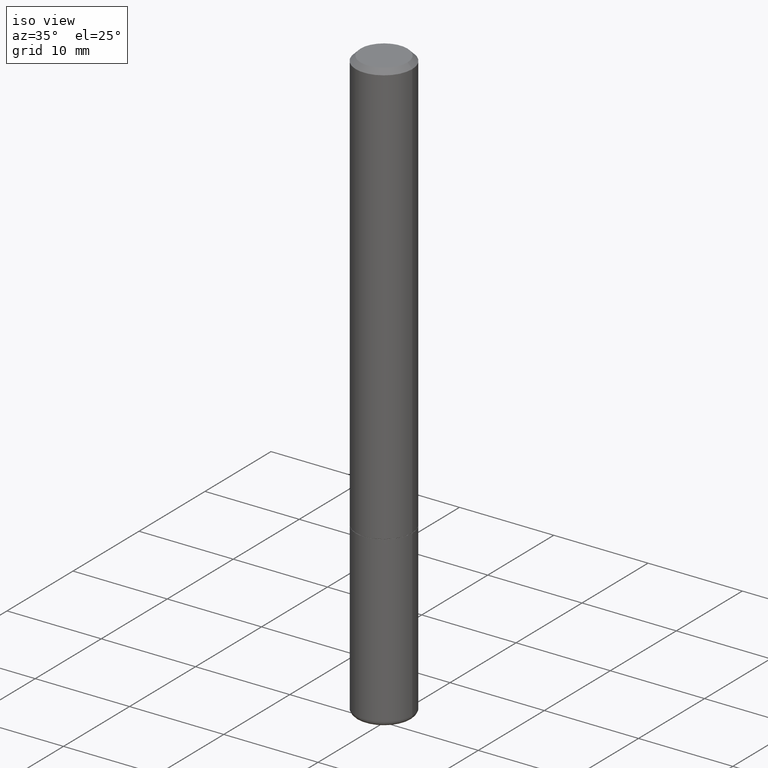
[diagram: clean part render]
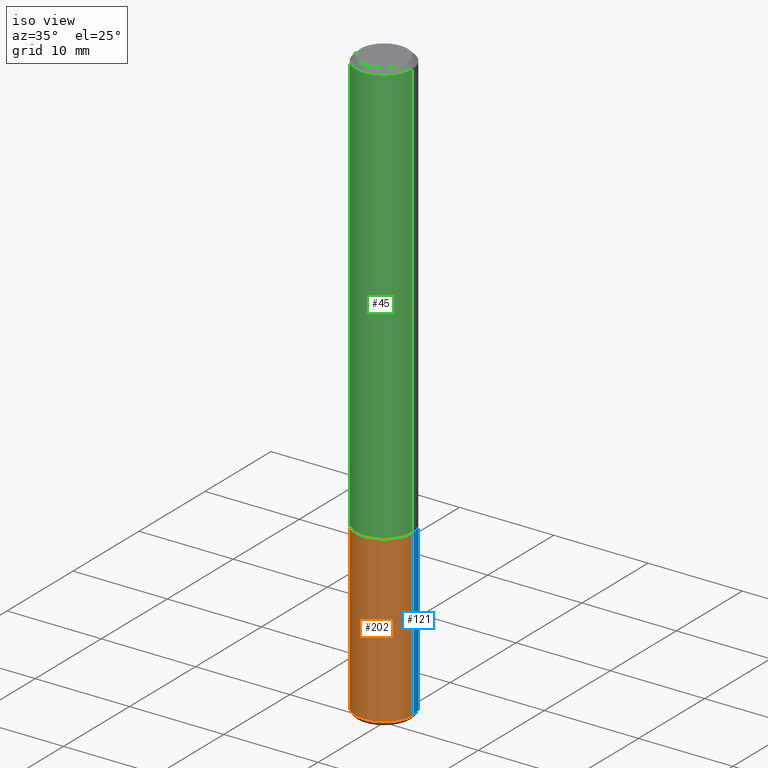
[diagram: same view with three faces highlighted in distinct colors, each labeled with its STEP entity id]
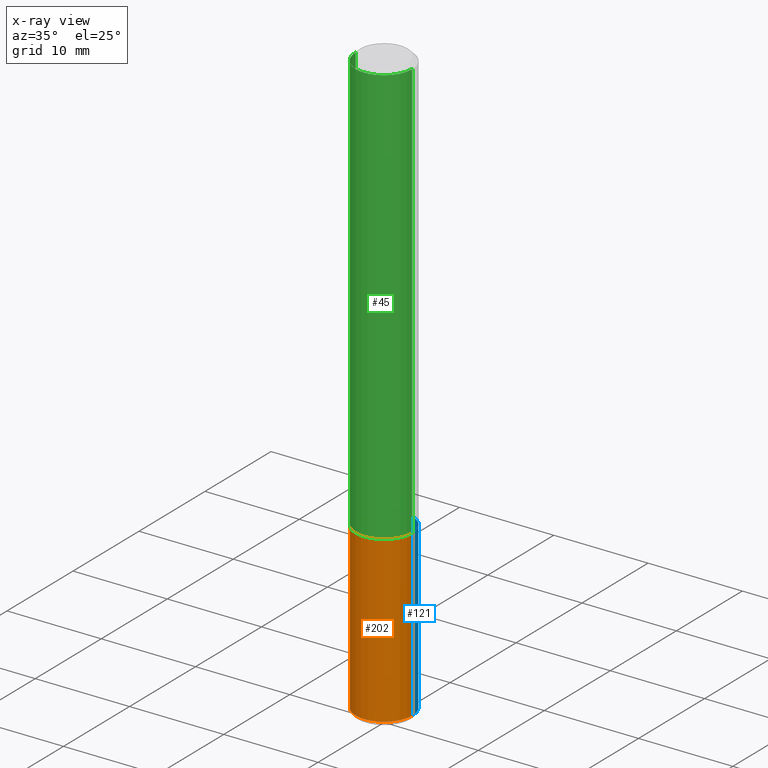
[diagram: x-ray of the same camera — body ghosted, the three highlighted faces saturated]
A machine part, iso view with three faces highlighted in distinct colors.
The next image is the same camera in x-ray (body ghosted, the three faces saturated) — at least one of them is partly hidden behind the body in this view.
Their STEP definitions:

[orange] entity #202 — the highlighted cylindrical surface (edge-blend (fillet) strip) has radius 2.9997 mm, axis along (-0, 0, 1).
#4 = EDGE_LOOP ( 'NONE', ( #10, #243, #399, #273 ) ) ;
#10 = ORIENTED_EDGE ( 'NONE', *, *, #274, .F. ) ;
#22 = VECTOR ( 'NONE', #192, 39.37007874015748143 ) ;
#39 = VERTEX_POINT ( 'NONE', #348 ) ;
#40 = VERTEX_POINT ( 'NONE', #158 ) ;
#54 = LINE ( 'NONE', #350, #378 ) ;
#56 = DIRECTION ( 'NONE',  ( -2.445468806185136597E-29, 3.491481338843145583E-15, 1.000000000000000000 ) ) ;
#85 = CARTESIAN_POINT ( 'NONE',  ( -0.1180999999999999966, -6.549172690193302663E-15, -1.771600000000000286 ) ) ;
#120 = CARTESIAN_POINT ( 'NONE',  ( 0.000000000000000000, 0.000000000000000000, 0.000000000000000000 ) ) ;
#145 = VERTEX_POINT ( 'NONE', #85 ) ;
#158 = CARTESIAN_POINT ( 'NONE',  ( 0.1180999999999999966, -7.010196232129265043E-15, -1.771600000000000286 ) ) ;
#160 = CARTESIAN_POINT ( 'NONE',  ( 0.1180999999999999966, -8.246878922347480654E-16, 5.758764772215000440E-30 ) ) ;
#162 = FACE_OUTER_BOUND ( 'NONE', #4, .T. ) ;
#181 = CARTESIAN_POINT ( 'NONE',  ( 4.332392537037588763E-29, -6.185508339894517569E-15, -1.771600000000000286 ) ) ;
#188 = DIRECTION ( 'NONE',  ( -2.445468806185136597E-29, 3.491481338843145583E-15, 1.000000000000000000 ) ) ;
#192 = DIRECTION ( 'NONE',  ( -2.445468806185136877E-29, 3.491481338843145188E-15, 1.000000000000000000 ) ) ;
#195 = VERTEX_POINT ( 'NONE', #227 ) ;
#200 = EDGE_CURVE ( 'NONE', #195, #40, #319, .T. ) ;
#202 = ADVANCED_FACE ( 'NONE', ( #162 ), #359, .T. ) ;
#205 = CIRCLE ( 'NONE', #380, 0.1180999999999999966 ) ;
#227 = CARTESIAN_POINT ( 'NONE',  ( 0.1181000000000000105, -9.415826874592192413E-15, -2.460600000000000342 ) ) ;
#232 = CARTESIAN_POINT ( 'NONE',  ( 6.017320544499148018E-29, -8.591138982357444151E-15, -2.460600000000000342 ) ) ;
#238 = EDGE_CURVE ( 'NONE', #39, #195, #205, .T. ) ;
#243 = ORIENTED_EDGE ( 'NONE', *, *, #238, .T. ) ;
#263 = DIRECTION ( 'NONE',  ( 1.000000000000000000, -6.982962677686273021E-15, 0.000000000000000000 ) ) ;
#273 = ORIENTED_EDGE ( 'NONE', *, *, #409, .F. ) ;
#274 = EDGE_CURVE ( 'NONE', #39, #145, #54, .T. ) ;
#276 = DIRECTION ( 'NONE',  ( -2.445468806185136597E-29, 3.491481338843145583E-15, 1.000000000000000000 ) ) ;
#281 = DIRECTION ( 'NONE',  ( 1.000000000000000000, -6.982962677686265133E-15, 0.000000000000000000 ) ) ;
#291 = DIRECTION ( 'NONE',  ( -2.445468806185136877E-29, 3.491481338843145188E-15, 1.000000000000000000 ) ) ;
#312 = AXIS2_PLACEMENT_3D ( 'NONE', #120, #56, #383 ) ;
#313 = AXIS2_PLACEMENT_3D ( 'NONE', #181, #276, #281 ) ;
#319 = LINE ( 'NONE', #160, #22 ) ;
#320 = CIRCLE ( 'NONE', #313, 0.1180999999999999966 ) ;
#348 = CARTESIAN_POINT ( 'NONE',  ( -0.1181000000000000105, -7.751988011424766742E-15, -2.460600000000000342 ) ) ;
#350 = CARTESIAN_POINT ( 'NONE',  ( -0.1180999999999999966, 8.391509709326782957E-16, -5.809262341591043784E-30 ) ) ;
#359 = CYLINDRICAL_SURFACE ( 'NONE', #312, 0.1180999999999999966 ) ;
#378 = VECTOR ( 'NONE', #291, 39.37007874015748143 ) ;
#380 = AXIS2_PLACEMENT_3D ( 'NONE', #232, #188, #263 ) ;
#383 = DIRECTION ( 'NONE',  ( 1.000000000000000000, -6.982962677686266711E-15, 4.876176775795936353E-29 ) ) ;
#399 = ORIENTED_EDGE ( 'NONE', *, *, #200, .T. ) ;
#409 = EDGE_CURVE ( 'NONE', #145, #40, #320, .T. ) ;

[blue] entity #121 — the highlighted cylindrical surface (edge-blend (fillet) strip) has radius 2.9997 mm, axis along (-0, 0, 1).
#11 = ORIENTED_EDGE ( 'NONE', *, *, #292, .F. ) ;
#18 = DIRECTION ( 'NONE',  ( -2.445468806185136597E-29, 3.491481338843145583E-15, 1.000000000000000000 ) ) ;
#22 = VECTOR ( 'NONE', #192, 39.37007874015748143 ) ;
#39 = VERTEX_POINT ( 'NONE', #348 ) ;
#40 = VERTEX_POINT ( 'NONE', #158 ) ;
#51 = CARTESIAN_POINT ( 'NONE',  ( 0.000000000000000000, 0.000000000000000000, 0.000000000000000000 ) ) ;
#54 = LINE ( 'NONE', #350, #378 ) ;
#73 = EDGE_LOOP ( 'NONE', ( #341, #113, #11, #210 ) ) ;
#85 = CARTESIAN_POINT ( 'NONE',  ( -0.1180999999999999966, -6.549172690193302663E-15, -1.771600000000000286 ) ) ;
#88 = DIRECTION ( 'NONE',  ( 1.000000000000000000, -6.982962677686266711E-15, 4.876176775795936353E-29 ) ) ;
#93 = DIRECTION ( 'NONE',  ( -2.445468806185136597E-29, 3.491481338843145583E-15, 1.000000000000000000 ) ) ;
#113 = ORIENTED_EDGE ( 'NONE', *, *, #274, .T. ) ;
#118 = CIRCLE ( 'NONE', #196, 0.1180999999999999966 ) ;
#121 = ADVANCED_FACE ( 'NONE', ( #251 ), #287, .T. ) ;
#145 = VERTEX_POINT ( 'NONE', #85 ) ;
#158 = CARTESIAN_POINT ( 'NONE',  ( 0.1180999999999999966, -7.010196232129265043E-15, -1.771600000000000286 ) ) ;
#160 = CARTESIAN_POINT ( 'NONE',  ( 0.1180999999999999966, -8.246878922347480654E-16, 5.758764772215000440E-30 ) ) ;
#186 = DIRECTION ( 'NONE',  ( -2.445468806185136597E-29, 3.491481338843145583E-15, 1.000000000000000000 ) ) ;
#192 = DIRECTION ( 'NONE',  ( -2.445468806185136877E-29, 3.491481338843145188E-15, 1.000000000000000000 ) ) ;
#195 = VERTEX_POINT ( 'NONE', #227 ) ;
#196 = AXIS2_PLACEMENT_3D ( 'NONE', #415, #186, #286 ) ;
#200 = EDGE_CURVE ( 'NONE', #195, #40, #319, .T. ) ;
#210 = ORIENTED_EDGE ( 'NONE', *, *, #200, .F. ) ;
#227 = CARTESIAN_POINT ( 'NONE',  ( 0.1181000000000000105, -9.415826874592192413E-15, -2.460600000000000342 ) ) ;
#229 = DIRECTION ( 'NONE',  ( 1.000000000000000000, -6.982962677686273021E-15, 0.000000000000000000 ) ) ;
#251 = FACE_OUTER_BOUND ( 'NONE', #73, .T. ) ;
#266 = CIRCLE ( 'NONE', #357, 0.1180999999999999966 ) ;
#274 = EDGE_CURVE ( 'NONE', #39, #145, #54, .T. ) ;
#286 = DIRECTION ( 'NONE',  ( 1.000000000000000000, -6.982962677686265133E-15, 0.000000000000000000 ) ) ;
#287 = CYLINDRICAL_SURFACE ( 'NONE', #294, 0.1180999999999999966 ) ;
#291 = DIRECTION ( 'NONE',  ( -2.445468806185136877E-29, 3.491481338843145188E-15, 1.000000000000000000 ) ) ;
#292 = EDGE_CURVE ( 'NONE', #40, #145, #118, .T. ) ;
#294 = AXIS2_PLACEMENT_3D ( 'NONE', #51, #18, #88 ) ;
#319 = LINE ( 'NONE', #160, #22 ) ;
#331 = EDGE_CURVE ( 'NONE', #195, #39, #266, .T. ) ;
#341 = ORIENTED_EDGE ( 'NONE', *, *, #331, .T. ) ;
#348 = CARTESIAN_POINT ( 'NONE',  ( -0.1181000000000000105, -7.751988011424766742E-15, -2.460600000000000342 ) ) ;
#350 = CARTESIAN_POINT ( 'NONE',  ( -0.1180999999999999966, 8.391509709326782957E-16, -5.809262341591043784E-30 ) ) ;
#357 = AXIS2_PLACEMENT_3D ( 'NONE', #389, #93, #229 ) ;
#378 = VECTOR ( 'NONE', #291, 39.37007874015748143 ) ;
#389 = CARTESIAN_POINT ( 'NONE',  ( 6.017320544499148018E-29, -8.591138982357444151E-15, -2.460600000000000342 ) ) ;
#415 = CARTESIAN_POINT ( 'NONE',  ( 4.332392537037588763E-29, -6.185508339894517569E-15, -1.771600000000000286 ) ) ;

[green] entity #45 — the highlighted cylindrical surface (edge-blend (fillet) strip) has radius 2.9997 mm, axis along (-0, 0, 1).
#8 = AXIS2_PLACEMENT_3D ( 'NONE', #19, #52, #182 ) ;
#19 = CARTESIAN_POINT ( 'NONE',  ( 4.890937612370288923E-31, -6.982962677686312563E-17, -0.02000000000000006287 ) ) ;
#20 = DIRECTION ( 'NONE',  ( -2.445468806185136597E-29, 3.491481338843145583E-15, 1.000000000000000000 ) ) ;
#28 = DIRECTION ( 'NONE',  ( 1.000000000000000000, -6.982962677686266711E-15, 4.876176775795936353E-29 ) ) ;
#30 = DIRECTION ( 'NONE',  ( -2.445468806185136877E-29, 3.491481338843145188E-15, 1.000000000000000000 ) ) ;
#34 = EDGE_CURVE ( 'NONE', #308, #306, #119, .T. ) ;
#45 = ADVANCED_FACE ( 'NONE', ( #323 ), #390, .T. ) ;
#52 = DIRECTION ( 'NONE',  ( -2.445468806185136597E-29, 3.491481338843145583E-15, 1.000000000000000000 ) ) ;
#57 = AXIS2_PLACEMENT_3D ( 'NONE', #95, #224, #28 ) ;
#60 = CARTESIAN_POINT ( 'NONE',  ( 0.1181000000000001354, -8.246878922347490515E-16, 5.758764772215007447E-30 ) ) ;
#63 = AXIS2_PLACEMENT_3D ( 'NONE', #317, #20, #256 ) ;
#80 = ORIENTED_EDGE ( 'NONE', *, *, #34, .F. ) ;
#95 = CARTESIAN_POINT ( 'NONE',  ( 0.000000000000000000, 0.000000000000000000, 0.000000000000000000 ) ) ;
#119 = LINE ( 'NONE', #124, #164 ) ;
#124 = CARTESIAN_POINT ( 'NONE',  ( -0.1181000000000001354, 8.391509709326792818E-16, -5.809262341591050090E-30 ) ) ;
#155 = EDGE_CURVE ( 'NONE', #308, #275, #330, .T. ) ;
#164 = VECTOR ( 'NONE', #259, 39.37007874015748143 ) ;
#172 = EDGE_LOOP ( 'NONE', ( #80, #337, #234, #277 ) ) ;
#182 = DIRECTION ( 'NONE',  ( 1.000000000000000000, -6.982962677686266711E-15, 0.000000000000000000 ) ) ;
#201 = EDGE_CURVE ( 'NONE', #275, #244, #325, .T. ) ;
#224 = DIRECTION ( 'NONE',  ( -2.445468806185136597E-29, 3.491481338843145583E-15, 1.000000000000000000 ) ) ;
#226 = CARTESIAN_POINT ( 'NONE',  ( 0.1181000000000000383, -8.800544403136812319E-16, -0.02000000000000006287 ) ) ;
#234 = ORIENTED_EDGE ( 'NONE', *, *, #201, .T. ) ;
#244 = VERTEX_POINT ( 'NONE', #226 ) ;
#256 = DIRECTION ( 'NONE',  ( 1.000000000000000000, -6.982962677686267499E-15, 0.000000000000000000 ) ) ;
#259 = DIRECTION ( 'NONE',  ( -2.445468806185136877E-29, 3.491481338843145188E-15, 1.000000000000000000 ) ) ;
#265 = VECTOR ( 'NONE', #30, 39.37007874015748143 ) ;
#271 = CIRCLE ( 'NONE', #8, 0.1181000000000000383 ) ;
#275 = VERTEX_POINT ( 'NONE', #387 ) ;
#277 = ORIENTED_EDGE ( 'NONE', *, *, #352, .F. ) ;
#306 = VERTEX_POINT ( 'NONE', #321 ) ;
#308 = VERTEX_POINT ( 'NONE', #347 ) ;
#317 = CARTESIAN_POINT ( 'NONE',  ( 4.329947068231403160E-29, -6.182016858555674562E-15, -1.770600000000000174 ) ) ;
#321 = CARTESIAN_POINT ( 'NONE',  ( -0.1181000000000000383, 7.548582654578852602E-16, -0.02000000000000006287 ) ) ;
#323 = FACE_OUTER_BOUND ( 'NONE', #172, .T. ) ;
#325 = LINE ( 'NONE', #60, #265 ) ;
#330 = CIRCLE ( 'NONE', #63, 0.1181000000000002187 ) ;
#337 = ORIENTED_EDGE ( 'NONE', *, *, #155, .T. ) ;
#347 = CARTESIAN_POINT ( 'NONE',  ( -0.1181000000000002187, -2.286772271733587183E-15, -1.770600000000000174 ) ) ;
#352 = EDGE_CURVE ( 'NONE', #306, #244, #271, .T. ) ;
#387 = CARTESIAN_POINT ( 'NONE',  ( 0.1181000000000002187, -7.006704750790424403E-15, -1.770600000000000174 ) ) ;
#390 = CYLINDRICAL_SURFACE ( 'NONE', #57, 0.1181000000000001354 ) ;